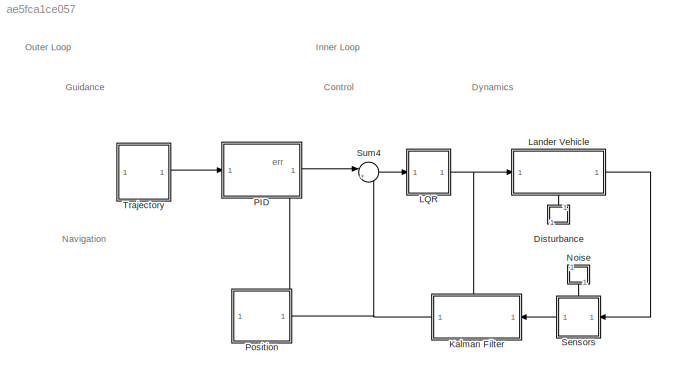
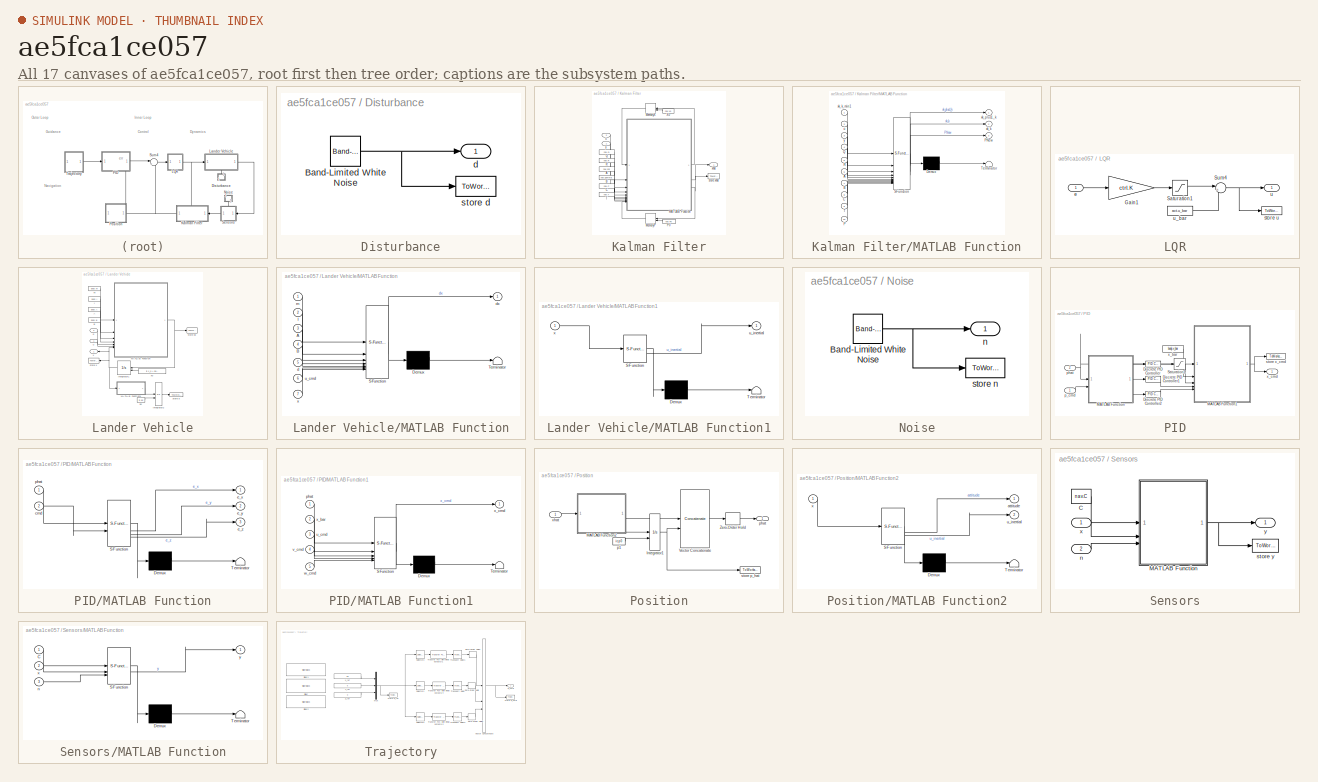
[diagram: thumbnail index - all 17 canvases of the model, root first then tree order]
MODEL slx_ae5fca1ce057
KIND model
CONFIG AbsTol = auto
CONFIG EnableMultiTasking = off
CONFIG FixedStep = auto
CONFIG MaxStep = auto
CONFIG MinStep = auto
CONFIG RelTol = 1e-3
CONFIG SampleTimeConstraint = Unconstrained
CONFIG SolverName = VariableStepAuto
CONFIG StartTime = 0.0
CONFIG StopTime = inf
BLOCK [SubSystem] Disturbance
  NameLocation = right
BLOCK [Reference] Disturbance/Band-Limited White Noise  REF=simulink/Sources/Band-Limited
White Noise
  SourceBlock = simulink/Sources/Band-Limited\nWhite Noise
  SourceType = Band-Limited White Noise.
BLOCK [Outport] Disturbance/d
BLOCK [ToWorkspace] Disturbance/store d
  FixptAsFi = on
  MaxDataPoints = inf
  SampleTime = -1
  SaveFormat = Timeseries
  VariableName = d
BLOCK [SubSystem] Kalman Filter
  PortSchema = {"entries":[{"content":{"sides":[{"content":{"connectorIds":["In1"]},"type":"ConnectorPlacement.EquallySpacedRectSide","uuid":"ed9a3bfc-e7a2-4410-871f-111b32929a82"},{"content":{"connectorIds":["Out1"],"side":"RIGHT"},"type":"ConnectorPlacement.EquallySpacedRectSide","uuid":"9caadf78-b71d-47f7-a4d6-15bfba055fff"},{"content":{"connectorIds":["In2"],"side":"TOP"},"type":"ConnectorPlacement.EquallySp...<+245ch>
BLOCK [Constant] Kalman Filter/A
  OutDataTypeStr = Inherit: Inherit via back propagation
  SampleTime = nav.T
  Value = nav.phi
  VectorParams1D = off
BLOCK [Constant] Kalman Filter/B
  OutDataTypeStr = Inherit: Inherit via back propagation
  SampleTime = nav.T
  Value = nav.gamma
  VectorParams1D = off
BLOCK [Constant] Kalman Filter/C
  OutDataTypeStr = Inherit: Inherit via back propagation
  SampleTime = nav.T
  Value = nav.C
  VectorParams1D = off
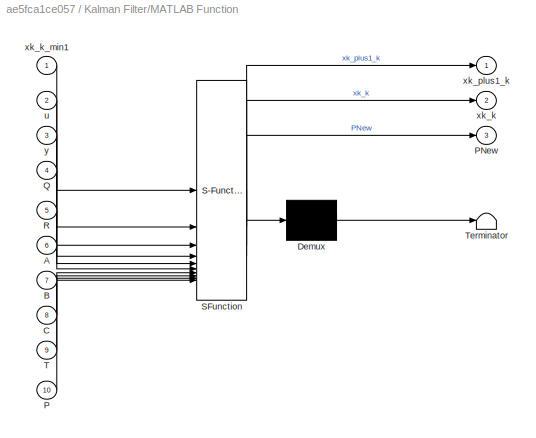
BLOCK [SubSystem] Kalman Filter/MATLAB Function
  ErrorFcn = Stateflow.Translate.translate
  PermitHierarchicalResolution = ExplicitOnly
  SFBlockType = MATLAB Function
  TreatAsAtomicUnit = on
BLOCK [Demux] Kalman Filter/MATLAB Function/ Demux 
  Outputs = 1
BLOCK [S-Function] Kalman Filter/MATLAB Function/ SFunction 
  EnableBusSupport = on
  FunctionName = sf_sfun
  PortCounts = [10 4]
  SFcnIsStateOwnerBlock = off
  SFunctionDeploymentMode = off
  Tag = Stateflow S-Function 3
BLOCK [Terminator] Kalman Filter/MATLAB Function/ Terminator 
BLOCK [Inport] Kalman Filter/MATLAB Function/A
  Port = 6
BLOCK [Inport] Kalman Filter/MATLAB Function/B
  Port = 7
BLOCK [Inport] Kalman Filter/MATLAB Function/C
  Port = 8
BLOCK [Inport] Kalman Filter/MATLAB Function/P
  Port = 10
BLOCK [Outport] Kalman Filter/MATLAB Function/PNew
  Port = 3
BLOCK [Inport] Kalman Filter/MATLAB Function/Q
  Port = 4
BLOCK [Inport] Kalman Filter/MATLAB Function/R
  Port = 5
BLOCK [Inport] Kalman Filter/MATLAB Function/T
  Port = 9
BLOCK [Inport] Kalman Filter/MATLAB Function/u
  Port = 2
BLOCK [Outport] Kalman Filter/MATLAB Function/xk_k
  Port = 2
BLOCK [Inport] Kalman Filter/MATLAB Function/xk_k_min1
BLOCK [Outport] Kalman Filter/MATLAB Function/xk_plus1_k
BLOCK [Inport] Kalman Filter/MATLAB Function/y
  Port = 3
BLOCK [Delay] Kalman Filter/MemoryP
  DelayLength = 1
  InitialConditionSource = Input port
  InputPortMap = u0,p4
  SampleTime = nav.T
BLOCK [Delay] Kalman Filter/MemoryX
  DelayLength = 1
  InitialConditionSource = Input port
  InputPortMap = u0,p4
  SampleTime = nav.T
BLOCK [Constant] Kalman Filter/P0
  OutDataTypeStr = Inherit: Inherit via back propagation
  SampleTime = nav.T
  Value = nav.P0
BLOCK [Constant] Kalman Filter/Q
  OutDataTypeStr = Inherit: Inherit via back propagation
  SampleTime = nav.T
  Value = nav.Q
  VectorParams1D = off
BLOCK [Constant] Kalman Filter/R
  OutDataTypeStr = Inherit: Inherit via back propagation
  SampleTime = nav.T
  Value = nav.R
  VectorParams1D = off
BLOCK [Constant] Kalman Filter/T
  OutDataTypeStr = Inherit: Inherit via back propagation
  SampleTime = nav.T
  Value = nav.T
  VectorParams1D = off
BLOCK [Constant] Kalman Filter/X0
  OutDataTypeStr = Inherit: Inherit via back propagation
  SampleTime = nav.T
  Value = nav.x0
  VectorParams1D = off
BLOCK [ToWorkspace] Kalman Filter/store xhat
  FixptAsFi = on
  MaxDataPoints = inf
  SampleTime = -1
  SaveFormat = Timeseries
  VariableName = xh
BLOCK [Inport] Kalman Filter/u
  NameLocation = top
  Port = 2
  SampleTime = nav.T
BLOCK [Outport] Kalman Filter/xhat
  VectorParamsAs1DForOutWhenUnconnected = off
BLOCK [Inport] Kalman Filter/y
BLOCK [SubSystem] LQR
  NameLocation = top
BLOCK [Gain] LQR/Gain1
  Gain = ctrl.K
  Multiplication = Matrix(K*u) (u vector)
BLOCK [Saturate] LQR/Saturation1
  LowerLimit = act.lower
  UpperLimit = act.upper
BLOCK [Sum] LQR/Sum4
  Inputs = |++
  NameLocation = top
BLOCK [Inport] LQR/e
  SampleTime = ctrl.T
BLOCK [ToWorkspace] LQR/store u
  FixptAsFi = on
  MaxDataPoints = inf
  SampleTime = -1
  SaveFormat = Timeseries
  VariableName = u
BLOCK [Outport] LQR/u
BLOCK [Constant] LQR/u_bar
  SampleTime = ctrl.T
  Value = act.u_bar
BLOCK [SubSystem] Lander Vehicle
  NameLocation = top
  PortSchema = {"entries":[{"content":{"sides":[{"content":{"connectorIds":["In1"]},"type":"ConnectorPlacement.EquallySpacedRectSide","uuid":"53915b1a-b285-44c5-8350-0c9f1bc1b8aa"},{"content":{"connectorIds":["Out1"],"side":"RIGHT"},"type":"ConnectorPlacement.EquallySpacedRectSide","uuid":"1ce863af-0af9-488c-b338-1118d88ebce9"},{"content":{"side":"TOP"},"type":"ConnectorPlacement.EquallySpacedRectSide","uuid":"1...<+371ch>
BLOCK [Constant] Lander Vehicle/A 
  Value = body.A
BLOCK [Constant] Lander Vehicle/B
  Value = body.B
BLOCK [Constant] Lander Vehicle/I
  Value = body.I
BLOCK [Integrator] Lander Vehicle/Integrator1
  InitialConditionSource = external
BLOCK [Integrator] Lander Vehicle/Integrator2
  InitialConditionSource = external
  NameLocation = top
BLOCK [SubSystem] Lander Vehicle/MATLAB Function
  ErrorFcn = Stateflow.Translate.translate
  PermitHierarchicalResolution = ExplicitOnly
  SFBlockType = MATLAB Function
  TreatAsAtomicUnit = on
BLOCK [Demux] Lander Vehicle/MATLAB Function/ Demux 
  Outputs = 1
BLOCK [S-Function] Lander Vehicle/MATLAB Function/ SFunction 
  EnableBusSupport = on
  FunctionName = sf_sfun
  PortCounts = [7 2]
  SFcnIsStateOwnerBlock = off
  SFunctionDeploymentMode = off
  Tag = Stateflow S-Function 1
BLOCK [Terminator] Lander Vehicle/MATLAB Function/ Terminator 
BLOCK [Inport] Lander Vehicle/MATLAB Function/A
  Port = 3
BLOCK [Inport] Lander Vehicle/MATLAB Function/B
  Port = 4
BLOCK [Inport] Lander Vehicle/MATLAB Function/I
  Port = 2
BLOCK [Inport] Lander Vehicle/MATLAB Function/d
  Port = 5
BLOCK [Outport] Lander Vehicle/MATLAB Function/dx
BLOCK [Inport] Lander Vehicle/MATLAB Function/m
BLOCK [Inport] Lander Vehicle/MATLAB Function/u_cmd
  Port = 6
BLOCK [Inport] Lander Vehicle/MATLAB Function/x
  Port = 7
BLOCK [SubSystem] Lander Vehicle/MATLAB Function1
  ErrorFcn = Stateflow.Translate.translate
  PermitHierarchicalResolution = ExplicitOnly
  SFBlockType = MATLAB Function
  TreatAsAtomicUnit = on
BLOCK [Demux] Lander Vehicle/MATLAB Function1/ Demux 
  Outputs = 1
BLOCK [S-Function] Lander Vehicle/MATLAB Function1/ SFunction 
  EnableBusSupport = on
  FunctionName = sf_sfun
  PortCounts = [1 2]
  SFcnIsStateOwnerBlock = off
  SFunctionDeploymentMode = off
  Tag = Stateflow S-Function 4
BLOCK [Terminator] Lander Vehicle/MATLAB Function1/ Terminator 
BLOCK [Outport] Lander Vehicle/MATLAB Function1/u_inertial
BLOCK [Inport] Lander Vehicle/MATLAB Function1/x
BLOCK [Inport] Lander Vehicle/d
  Port = 2
BLOCK [Constant] Lander Vehicle/m
  Value = body.m
BLOCK [Constant] Lander Vehicle/p0
  Value = ic.p0
BLOCK [ToWorkspace] Lander Vehicle/store dx
  FixptAsFi = on
  MaxDataPoints = inf
  SampleTime = -1
  SaveFormat = Timeseries
  VariableName = dx
BLOCK [ToWorkspace] Lander Vehicle/store p
  FixptAsFi = on
  MaxDataPoints = inf
  SampleTime = -1
  SaveFormat = Timeseries
  VariableName = p
BLOCK [ToWorkspace] Lander Vehicle/store x
  FixptAsFi = on
  MaxDataPoints = inf
  SampleTime = -1
  SaveFormat = Timeseries
  VariableName = x
BLOCK [Inport] Lander Vehicle/u
BLOCK [Outport] Lander Vehicle/x
BLOCK [Constant] Lander Vehicle/x0
  Value = ic.x_0 + body.x_bar
BLOCK [SubSystem] Noise
  NameLocation = left
BLOCK [Reference] Noise/Band-Limited White Noise  REF=simulink/Sources/Band-Limited
White Noise
  SourceBlock = simulink/Sources/Band-Limited\nWhite Noise
  SourceType = Band-Limited White Noise.
BLOCK [Outport] Noise/n
BLOCK [ToWorkspace] Noise/store n
  FixptAsFi = on
  MaxDataPoints = inf
  SampleTime = -1
  SaveFormat = Timeseries
  VariableName = n
BLOCK [SubSystem] PID
  NameLocation = top
  PortSchema = {"entries":[{"content":{"sides":[{"content":{"connectorIds":["In1"]},"type":"ConnectorPlacement.EquallySpacedRectSide","uuid":"712f5c01-b215-4201-833f-320bbc83ea5c"},{"content":{"connectorIds":["Out1"],"side":"RIGHT"},"type":"ConnectorPlacement.EquallySpacedRectSide","uuid":"abc4d1f4-c66e-41f9-b696-6eba83762766"},{"content":{"side":"TOP"},"type":"ConnectorPlacement.EquallySpacedRectSide","uuid":"b...<+371ch>
BLOCK [Reference] PID/Discrete PID Controller  REF=slpidlib/PID Controller
  SourceBlock = slpidlib/PID Controller
  SourceType = PID 1dof
BLOCK [Reference] PID/Discrete PID Controller1  REF=slpidlib/PID Controller
  SourceBlock = slpidlib/PID Controller
  SourceType = PID 1dof
BLOCK [Reference] PID/Discrete PID Controller2  REF=slpidlib/PID Controller
  SourceBlock = slpidlib/PID Controller
  SourceType = PID 1dof
BLOCK [SubSystem] PID/MATLAB Function
  ErrorFcn = Stateflow.Translate.translate
  PermitHierarchicalResolution = ExplicitOnly
  SFBlockType = MATLAB Function
  TreatAsAtomicUnit = on
BLOCK [Demux] PID/MATLAB Function/ Demux 
  Outputs = 1
BLOCK [S-Function] PID/MATLAB Function/ SFunction 
  EnableBusSupport = on
  FunctionName = sf_sfun
  PortCounts = [2 4]
  SFcnIsStateOwnerBlock = off
  SFunctionDeploymentMode = off
  Tag = Stateflow S-Function 14
BLOCK [Terminator] PID/MATLAB Function/ Terminator 
BLOCK [Inport] PID/MATLAB Function/cmd
  Port = 2
BLOCK [Outport] PID/MATLAB Function/e_x
BLOCK [Outport] PID/MATLAB Function/e_y
  Port = 2
BLOCK [Outport] PID/MATLAB Function/e_z
  Port = 3
BLOCK [Inport] PID/MATLAB Function/phat
BLOCK [SubSystem] PID/MATLAB Function1
  ErrorFcn = Stateflow.Translate.translate
  PermitHierarchicalResolution = ExplicitOnly
  SFBlockType = MATLAB Function
  TreatAsAtomicUnit = on
BLOCK [Demux] PID/MATLAB Function1/ Demux 
  Outputs = 1
BLOCK [S-Function] PID/MATLAB Function1/ SFunction 
  EnableBusSupport = on
  FunctionName = sf_sfun
  PortCounts = [5 2]
  SFcnIsStateOwnerBlock = off
  SFunctionDeploymentMode = off
  Tag = Stateflow S-Function 8
BLOCK [Terminator] PID/MATLAB Function1/ Terminator 
BLOCK [Inport] PID/MATLAB Function1/phat
BLOCK [Inport] PID/MATLAB Function1/u_cmd
  Port = 3
BLOCK [Inport] PID/MATLAB Function1/v_cmd
  Port = 4
BLOCK [Inport] PID/MATLAB Function1/w_cmd
  Port = 5
BLOCK [Inport] PID/MATLAB Function1/x_bar
  Port = 2
BLOCK [Outport] PID/MATLAB Function1/x_cmd
BLOCK [Saturate] PID/Saturation1
  LowerLimit = -3
  UpperLimit = inf
BLOCK [Inport] PID/p_cmd
  SampleTime = guid.T
BLOCK [Inport] PID/phat
  Port = 2
  SampleTime = guid.T
BLOCK [ToWorkspace] PID/store x_cmd
  FixptAsFi = on
  MaxDataPoints = inf
  SampleTime = guid.T
  SaveFormat = Timeseries
  VariableName = x_cmd
BLOCK [Constant] PID/x_bar
  NameLocation = top
  SampleTime = guid.T
  Value = body.x_bar
BLOCK [Outport] PID/x_cmd
  SampleTime = guid.T
BLOCK [SubSystem] Position
  PortSchema = {"entries":[{"content":{"sides":[{"content":{},"type":"ConnectorPlacement.EquallySpacedRectSide","uuid":"c25766b7-26e8-404a-bb13-88adcce7c507"},{"content":{"connectorIds":["In1"],"side":"RIGHT"},"type":"ConnectorPlacement.EquallySpacedRectSide","uuid":"62d37392-c266-4624-8c87-bc68813e6eab"},{"content":{"connectorIds":["Out1"],"side":"TOP"},"type":"ConnectorPlacement.EquallySpacedRectSide","uuid":"...<+223ch>
BLOCK [Integrator] Position/Integrator1
  InitialConditionSource = external
  NameLocation = top
BLOCK [SubSystem] Position/MATLAB Function2
  ErrorFcn = Stateflow.Translate.translate
  PermitHierarchicalResolution = ExplicitOnly
  SFBlockType = MATLAB Function
  TreatAsAtomicUnit = on
BLOCK [Demux] Position/MATLAB Function2/ Demux 
  Outputs = 1
BLOCK [S-Function] Position/MATLAB Function2/ SFunction 
  EnableBusSupport = on
  FunctionName = sf_sfun
  PortCounts = [1 3]
  SFcnIsStateOwnerBlock = off
  SFunctionDeploymentMode = off
  Tag = Stateflow S-Function 5
BLOCK [Terminator] Position/MATLAB Function2/ Terminator 
BLOCK [Outport] Position/MATLAB Function2/attitude
BLOCK [Outport] Position/MATLAB Function2/u_inertial
  Port = 2
BLOCK [Inport] Position/MATLAB Function2/x
BLOCK [Concatenate] Position/Vector Concatenate
  Mode = Multidimensional array
BLOCK [ZeroOrderHold] Position/Zero-Order Hold
  SampleTime = guid.T
BLOCK [Constant] Position/p1
  SampleTime = guid.T
  Value = ic.p0
BLOCK [Outport] Position/phat
  SampleTime = guid.T
BLOCK [ToWorkspace] Position/store p_hat
  FixptAsFi = on
  MaxDataPoints = inf
  SampleTime = guid.T
  SaveFormat = Timeseries
  VariableName = ph
BLOCK [Inport] Position/xhat
  NameLocation = top
  SampleTime = guid.T
BLOCK [SubSystem] Sensors
  PortSchema = {"entries":[{"content":{"sides":[{"content":{"connectorIds":["In1"]},"type":"ConnectorPlacement.EquallySpacedRectSide","uuid":"c10a2f4f-01ed-46cf-9353-9999ca068f80"},{"content":{"connectorIds":["Out1"],"side":"RIGHT"},"type":"ConnectorPlacement.EquallySpacedRectSide","uuid":"1bf68d2b-7a9c-4702-b99e-db3ed675bf63"},{"content":{"connectorIds":["In2"],"side":"TOP"},"type":"ConnectorPlacement.EquallySp...<+371ch>
BLOCK [Constant] Sensors/C
  SampleTime = nav.T
  Value = nav.C
BLOCK [SubSystem] Sensors/MATLAB Function
  ErrorFcn = Stateflow.Translate.translate
  PermitHierarchicalResolution = ExplicitOnly
  SFBlockType = MATLAB Function
  TreatAsAtomicUnit = on
BLOCK [Demux] Sensors/MATLAB Function/ Demux 
  Outputs = 1
BLOCK [S-Function] Sensors/MATLAB Function/ SFunction 
  EnableBusSupport = on
  FunctionName = sf_sfun
  PortCounts = [3 2]
  SFcnIsStateOwnerBlock = off
  SFunctionDeploymentMode = off
  Tag = Stateflow S-Function 2
BLOCK [Terminator] Sensors/MATLAB Function/ Terminator 
BLOCK [Inport] Sensors/MATLAB Function/C
BLOCK [Inport] Sensors/MATLAB Function/n
  Port = 3
BLOCK [Inport] Sensors/MATLAB Function/x
  Port = 2
BLOCK [Outport] Sensors/MATLAB Function/y
BLOCK [Inport] Sensors/n
  Port = 2
BLOCK [ToWorkspace] Sensors/store y
  FixptAsFi = on
  MaxDataPoints = inf
  SampleTime = -1
  SaveFormat = Timeseries
  VariableName = y
BLOCK [Inport] Sensors/x
  SampleTime = nav.T
BLOCK [Outport] Sensors/y
  NameLocation = top
BLOCK [Sum] Sum4
  Inputs = |+-
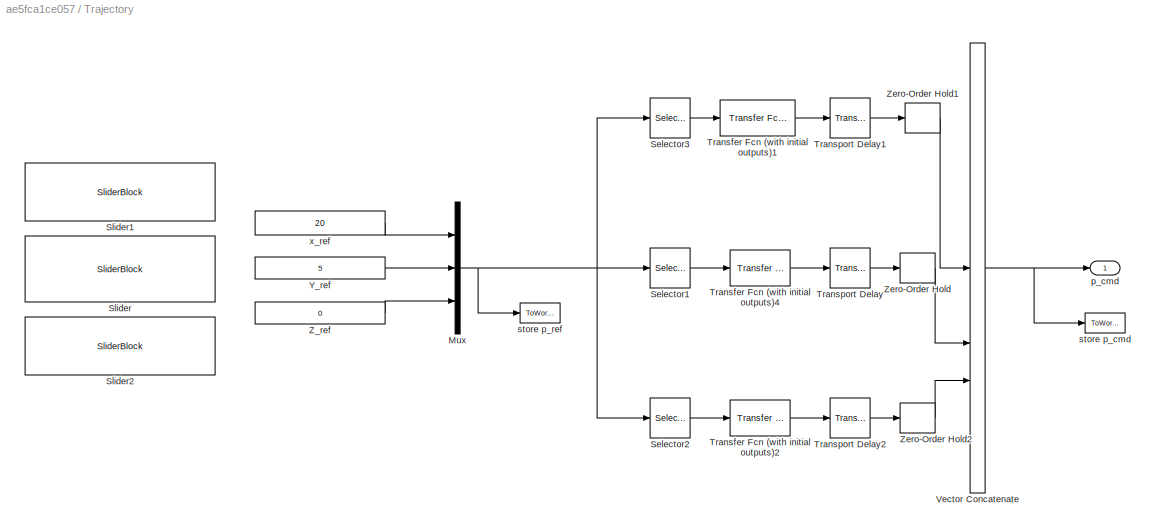
BLOCK [SubSystem] Trajectory
  NameLocation = top
BLOCK [Mux] Trajectory/Mux
  DisplayOption = bar
  Inputs = 3
BLOCK [Selector] Trajectory/Selector1
  IndexOptions = Index vector (dialog)
  Indices = 2
  InputPortWidth = 3
  OutputSizes = 1
BLOCK [Selector] Trajectory/Selector2
  IndexOptions = Index vector (dialog)
  Indices = [3]
  InputPortWidth = 3
  OutputSizes = 1
BLOCK [Selector] Trajectory/Selector3
  IndexOptions = Index vector (dialog)
  Indices = 1
  InputPortWidth = 3
  OutputSizes = 1
BLOCK [SliderBlock] Trajectory/Slider
  ScaleMax = 20
  ScaleMin = -20
BLOCK [SliderBlock] Trajectory/Slider1
BLOCK [SliderBlock] Trajectory/Slider2
  ScaleMax = 20
  ScaleMin = -20
BLOCK [Reference] Trajectory/Transfer Fcn (with initial outputs)1  REF=simulink_extras/Additional
Linear/Transfer Fcn
(with initial outputs)
  Commented = through
  SourceBlock = simulink_extras/Additional\nLinear/Transfer Fcn\n(with initial outputs)
  SourceType = Transfer Function with Initial Outputs
BLOCK [Reference] Trajectory/Transfer Fcn (with initial outputs)2  REF=simulink_extras/Additional
Linear/Transfer Fcn
(with initial outputs)
  Commented = through
  SourceBlock = simulink_extras/Additional\nLinear/Transfer Fcn\n(with initial outputs)
  SourceType = Transfer Function with Initial Outputs
BLOCK [Reference] Trajectory/Transfer Fcn (with initial outputs)4  REF=simulink_extras/Additional
Linear/Transfer Fcn
(with initial outputs)
  Commented = through
  SourceBlock = simulink_extras/Additional\nLinear/Transfer Fcn\n(with initial outputs)
  SourceType = Transfer Function with Initial Outputs
BLOCK [TransportDelay] Trajectory/Transport Delay
  Commented = through
  DelayTime = 0
BLOCK [TransportDelay] Trajectory/Transport Delay1
  Commented = through
BLOCK [TransportDelay] Trajectory/Transport Delay2
  Commented = through
  DelayTime = 0
BLOCK [Concatenate] Trajectory/Vector Concatenate
  Mode = Multidimensional array
  NumInputs = 3
BLOCK [Constant] Trajectory/Y_ref
  Value = 5
BLOCK [Constant] Trajectory/Z_ref
  Value = 0
BLOCK [ZeroOrderHold] Trajectory/Zero-Order Hold
  SampleTime = guid.T
BLOCK [ZeroOrderHold] Trajectory/Zero-Order Hold1
  SampleTime = guid.T
BLOCK [ZeroOrderHold] Trajectory/Zero-Order Hold2
  SampleTime = guid.T
BLOCK [Outport] Trajectory/p_cmd
  SampleTime = guid.T
BLOCK [ToWorkspace] Trajectory/store p_cmd
  FixptAsFi = on
  MaxDataPoints = inf
  SampleTime = guid.T
  SaveFormat = Timeseries
  VariableName = p_cmd
BLOCK [ToWorkspace] Trajectory/store p_ref
  FixptAsFi = on
  MaxDataPoints = inf
  SampleTime = guid.T
  SaveFormat = Timeseries
  VariableName = p_ref
BLOCK [Constant] Trajectory/x_ref
  Value = 20
ANNOTATION (root): err
ANNOTATION (root): Control
ANNOTATION (root): Dynamics
ANNOTATION (root): Guidance
ANNOTATION (root): Inner Loop
ANNOTATION (root): Navigation
ANNOTATION (root): Outer Loop
NET Disturbance/Band-Limited White Noise:1 -> Disturbance/d:1, Disturbance/store d:1
LINE Disturbance:1 -> Lander Vehicle:2
LINE Kalman Filter/A:1 -> Kalman Filter/MATLAB Function:6
LINE Kalman Filter/B:1 -> Kalman Filter/MATLAB Function:7
LINE Kalman Filter/C:1 -> Kalman Filter/MATLAB Function:8
LINE Kalman Filter/MATLAB Function:1 -> Kalman Filter/MemoryX:1
NET Kalman Filter/MATLAB Function:2 -> Kalman Filter/store xhat:1, Kalman Filter/xhat:1
LINE Kalman Filter/MATLAB Function:3 -> Kalman Filter/MemoryP:1
LINE Kalman Filter/MemoryP:1 -> Kalman Filter/MATLAB Function:10
LINE Kalman Filter/MemoryX:1 -> Kalman Filter/MATLAB Function:1
LINE Kalman Filter/P0:1 -> Kalman Filter/MemoryP:2
LINE Kalman Filter/Q:1 -> Kalman Filter/MATLAB Function:4
LINE Kalman Filter/R:1 -> Kalman Filter/MATLAB Function:5
LINE Kalman Filter/T:1 -> Kalman Filter/MATLAB Function:9
LINE Kalman Filter/X0:1 -> Kalman Filter/MemoryX:2
LINE Kalman Filter/u:1 -> Kalman Filter/MATLAB Function:2
LINE Kalman Filter/y:1 -> Kalman Filter/MATLAB Function:3
NET Kalman Filter:1 -> Position:1, Sum4:2
LINE LQR/Gain1:1 -> LQR/Saturation1:1
LINE LQR/Saturation1:1 -> LQR/Sum4:1
NET LQR/Sum4:1 -> LQR/store u:1, LQR/u:1
LINE LQR/e:1 -> LQR/Gain1:1
LINE LQR/u_bar:1 -> LQR/Sum4:2
NET LQR:1 -> Kalman Filter:2, Lander Vehicle:1
LINE Lander Vehicle/A :1 -> Lander Vehicle/MATLAB Function:3
LINE Lander Vehicle/B:1 -> Lander Vehicle/MATLAB Function:4
LINE Lander Vehicle/I:1 -> Lander Vehicle/MATLAB Function:2
NET Lander Vehicle/Integrator1:1 -> Lander Vehicle/MATLAB Function1:1, Lander Vehicle/MATLAB Function:7, Lander Vehicle/store x:1, Lander Vehicle/x:1
LINE Lander Vehicle/Integrator2:1 -> Lander Vehicle/store p:1
LINE Lander Vehicle/MATLAB Function1:1 -> Lander Vehicle/Integrator2:1
NET Lander Vehicle/MATLAB Function:1 -> Lander Vehicle/Integrator1:1, Lander Vehicle/store dx:1
LINE Lander Vehicle/d:1 -> Lander Vehicle/MATLAB Function:5
LINE Lander Vehicle/m:1 -> Lander Vehicle/MATLAB Function:1
LINE Lander Vehicle/p0:1 -> Lander Vehicle/Integrator2:2
LINE Lander Vehicle/u:1 -> Lander Vehicle/MATLAB Function:6
LINE Lander Vehicle/x0:1 -> Lander Vehicle/Integrator1:2
LINE Lander Vehicle:1 -> Sensors:1
NET Noise/Band-Limited White Noise:1 -> Noise/n:1, Noise/store n:1
LINE Noise:1 -> Sensors:2
LINE PID/Discrete PID Controller1:1 -> PID/MATLAB Function1:4
LINE PID/Discrete PID Controller2:1 -> PID/MATLAB Function1:5
LINE PID/Discrete PID Controller:1 -> PID/Saturation1:1
NET PID/MATLAB Function1:1 -> PID/store x_cmd:1, PID/x_cmd:1
LINE PID/MATLAB Function:1 -> PID/Discrete PID Controller:1
LINE PID/MATLAB Function:2 -> PID/Discrete PID Controller1:1
LINE PID/MATLAB Function:3 -> PID/Discrete PID Controller2:1
LINE PID/Saturation1:1 -> PID/MATLAB Function1:3
LINE PID/p_cmd:1 -> PID/MATLAB Function:2
NET PID/phat:1 -> PID/MATLAB Function1:1, PID/MATLAB Function:1
LINE PID/x_bar:1 -> PID/MATLAB Function1:2
LINE PID:1 -> Sum4:1
NET Position/Integrator1:1 -> Position/Vector Concatenate:2, Position/store p_hat:1
LINE Position/MATLAB Function2:1 -> Position/Vector Concatenate:1
LINE Position/MATLAB Function2:2 -> Position/Integrator1:1
LINE Position/Vector Concatenate:1 -> Position/Zero-Order Hold:1
LINE Position/Zero-Order Hold:1 -> Position/phat:1
LINE Position/p1:1 -> Position/Integrator1:2
LINE Position/xhat:1 -> Position/MATLAB Function2:1
LINE Position:1 -> PID:2
LINE Sensors/C:1 -> Sensors/MATLAB Function:1
NET Sensors/MATLAB Function:1 -> Sensors/store y:1, Sensors/y:1
LINE Sensors/n:1 -> Sensors/MATLAB Function:3
LINE Sensors/x:1 -> Sensors/MATLAB Function:2
LINE Sensors:1 -> Kalman Filter:1
LINE Sum4:1 -> LQR:1
NET Trajectory/Mux:1 -> Trajectory/Selector1:1, Trajectory/Selector2:1, Trajectory/Selector3:1, Trajectory/store p_ref:1
LINE Trajectory/Selector1:1 -> Trajectory/Transfer Fcn (with initial outputs)4:1
LINE Trajectory/Selector2:1 -> Trajectory/Transfer Fcn (with initial outputs)2:1
LINE Trajectory/Selector3:1 -> Trajectory/Transfer Fcn (with initial outputs)1:1
LINE Trajectory/Transfer Fcn (with initial outputs)1:1 -> Trajectory/Transport Delay1:1
LINE Trajectory/Transfer Fcn (with initial outputs)2:1 -> Trajectory/Transport Delay2:1
LINE Trajectory/Transfer Fcn (with initial outputs)4:1 -> Trajectory/Transport Delay:1
LINE Trajectory/Transport Delay1:1 -> Trajectory/Zero-Order Hold1:1
LINE Trajectory/Transport Delay2:1 -> Trajectory/Zero-Order Hold2:1
LINE Trajectory/Transport Delay:1 -> Trajectory/Zero-Order Hold:1
NET Trajectory/Vector Concatenate:1 -> Trajectory/p_cmd:1, Trajectory/store p_cmd:1
LINE Trajectory/Y_ref:1 -> Trajectory/Mux:2
LINE Trajectory/Z_ref:1 -> Trajectory/Mux:3
LINE Trajectory/Zero-Order Hold1:1 -> Trajectory/Vector Concatenate:1
LINE Trajectory/Zero-Order Hold2:1 -> Trajectory/Vector Concatenate:3
LINE Trajectory/Zero-Order Hold:1 -> Trajectory/Vector Concatenate:2
LINE Trajectory/x_ref:1 -> Trajectory/Mux:1
LINE Trajectory:1 -> PID:1
note: NET lines group one-source signal fan-out (src -> all destinations, sorted); 1:1 wires keep LINE
CHART PID/MATLAB Function states=1 transitions=1
  STATE_LABEL 'eML_blk_kernel()'
  STATE_LABEL 'SCRIPT:\nfunction [e_x, e_y, e_z]  = ComputeError(phat, cmd)\n\n% position error\nerr = cmd - phat(4:6,:);\ne_x = err(1);\ne_y = err(2);\ne_z = err(3);\nend\n'
CHART Lander Vehicle/MATLAB Function states=1 transitions=1
  STATE_LABEL 'eML_blk_kernel()'
  STATE_LABEL 'SCRIPT:\nfunction dx =  NonlinearDynamics(m, I, A, B, d, u_cmd, x)\n% body properties: I, m\n% actuator dynamics: A, B\n% input: x, u, d \n% output: dx\n\n% rotation matrix from inertial to body frame\nT1 = [1 0 0; 0 cos(x(1)) sin(x(1)); 0 -sin(x(1)) cos(x(1))];\nT2 = [cos(x(2)) 0 -sin(x(2)); 0 1 0; sin(x(2)) 0 cos(x(2))];\nT3 = [cos(x(3)) sin(x(3)) 0; -sin(x(3)) cos(x(3)) 0; 0 0 1];\n\n% dx from coupled dyna...<+236ch>'
CHART Sensors/MATLAB Function states=1 transitions=1
  STATE_LABEL 'eML_blk_kernel()'
  STATE_LABEL 'SCRIPT:\nfunction y = Pixhawk(C, x, n)\n\n% will be able to get x\n% integrating dx (imu data) can give some states,\n% gps / pitot tubes could give some states directly, etc.\n% may or may not be able to measure thrusts\n\ny = C*x + n; \n'
CHART Kalman Filter/MATLAB Function states=1 transitions=1
  STATE_LABEL 'eML_blk_kernel()'
  STATE_LABEL 'SCRIPT:\nfunction [xk_plus1_k, xk_k, PNew] = KalmanFilter(xk_k_min1, u, y, Q, R, A, B, C, T, P)\n% Parameters\n%   T        - Sampling Time\n%   y, u     - Measurements, Control Signal\n%   A, B, C  - System Matrices\n%   Q, R     - Noise Covariance Matrices\n%   L        - Kalman gain to get x[k+1|k] from x[k|k-1] and y[k]\n%   M        - Kalman gain to get x[k|k] from x[k|k-1] and y[k]\n%   Z        - St...<+591ch>'
CHART Lander Vehicle/MATLAB Function1 states=1 transitions=1
  STATE_LABEL 'eML_blk_kernel()'
  STATE_LABEL "SCRIPT:\nfunction u_inertial = BodyToInertial(x)\n\n% body frame position\nu_body = x(4:6,:); % body frame position\n\n% inertial frame position\nT1 = [1 0 0; 0 cos(x(1)) sin(x(1)); 0 -sin(x(1)) cos(x(1))];\nT2 = [cos(x(2)) 0 -sin(x(2)); 0 1 0; sin(x(2)) 0 cos(x(2))];\nT3 = [cos(x(3)) sin(x(3)) 0; -sin(x(3)) cos(x(3)) 0; 0 0 1];\nu_inertial = (T1*T2*T3)'*u_body;\n\nend\n"
CHART Position/MATLAB Function2 states=1 transitions=1
  STATE_LABEL 'eML_blk_kernel()'
  STATE_LABEL "SCRIPT:\nfunction [attitude, u_inertial] = BodyToInertial(x)\n\n% body frame position\nattitude = x(1:3,:); % attitude\nu_body = x(4:6,:); % body frame position\n\n% inertial frame position\nT1 = [1 0 0; 0 cos(x(1)) sin(x(1)); 0 -sin(x(1)) cos(x(1))];\nT2 = [cos(x(2)) 0 -sin(x(2)); 0 1 0; sin(x(2)) 0 cos(x(2))];\nT3 = [cos(x(3)) sin(x(3)) 0; -sin(x(3)) cos(x(3)) 0; 0 0 1];\nu_inertial = (T1*T2*T3)'*u_body;\n\n...<+4ch>"
CHART PID/MATLAB Function1 states=1 transitions=1
  STATE_LABEL 'eML_blk_kernel()'
  STATE_LABEL 'SCRIPT:\nfunction x_cmd = ComputeRef(phat, x_bar, u_cmd,v_cmd,w_cmd)\n\n% body frame position\nT1 = [1 0 0; 0 cos(phat(1)) sin(phat(1)); 0 -sin(phat(1)) cos(phat(1))];\nT2 = [cos(phat(2)) 0 -sin(phat(2)); 0 1 0; sin(phat(2)) 0 cos(phat(2))];\nT3 = [cos(phat(3)) sin(phat(3)) 0; -sin(phat(3)) cos(phat(3)) 0; 0 0 1];\nv_body = (T1*T2*T3)*[u_cmd; v_cmd; w_cmd];\n\nx_cmd = x_bar;\nx_cmd(4:6) = x_cmd(4:6) + v_bod...<+7ch>'
CHART  states=0 transitions=0
CHART  states=0 transitions=0
CHART  states=0 transitions=0
CHART  states=0 transitions=0
CHART  states=0 transitions=0
CHART  states=0 transitions=0
CHART  states=0 transitions=0
